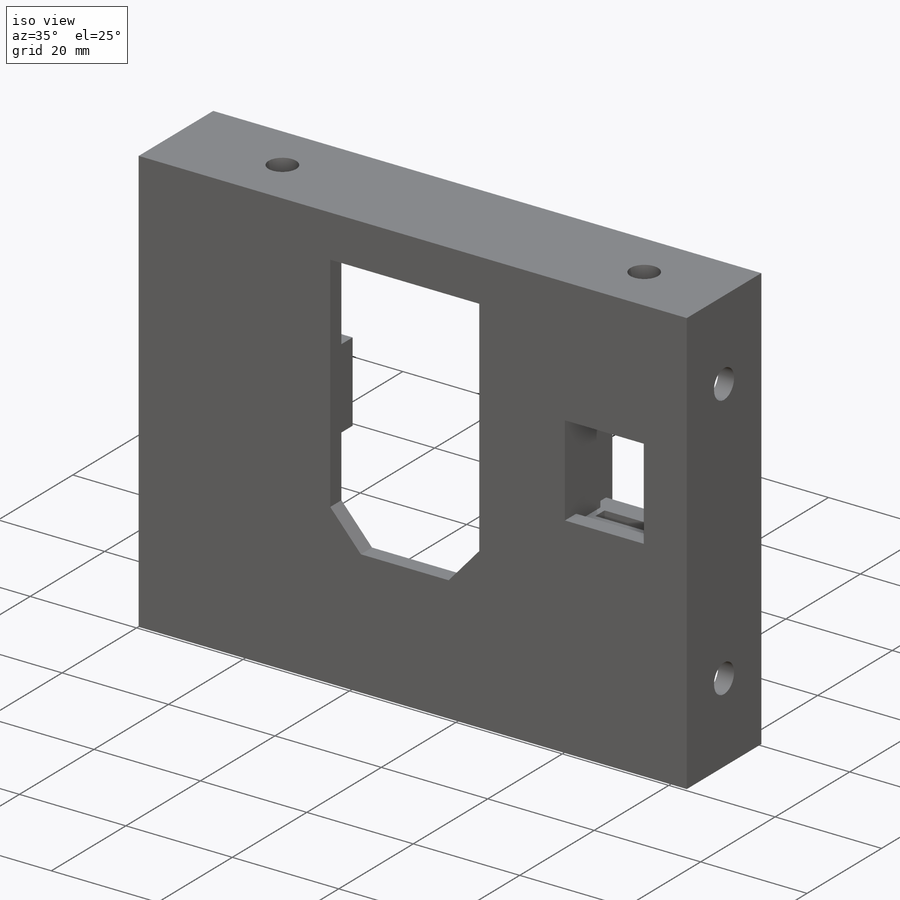
[diagram: iso view]
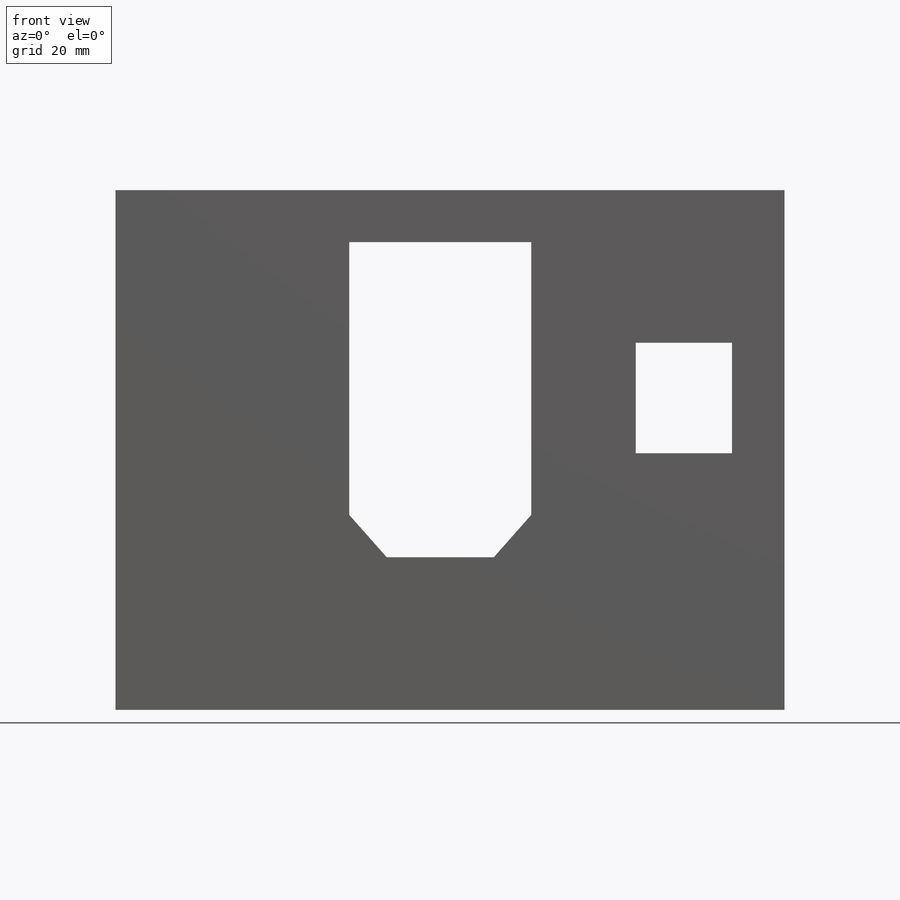
[diagram: front view]
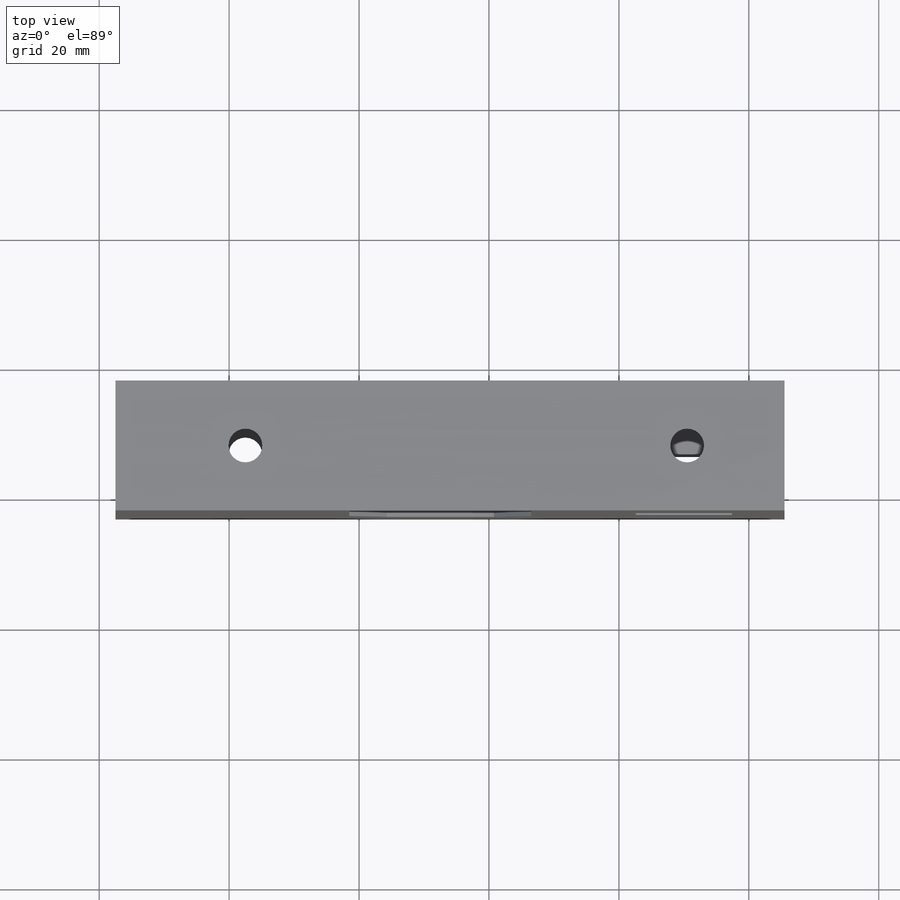
[diagram: top view]
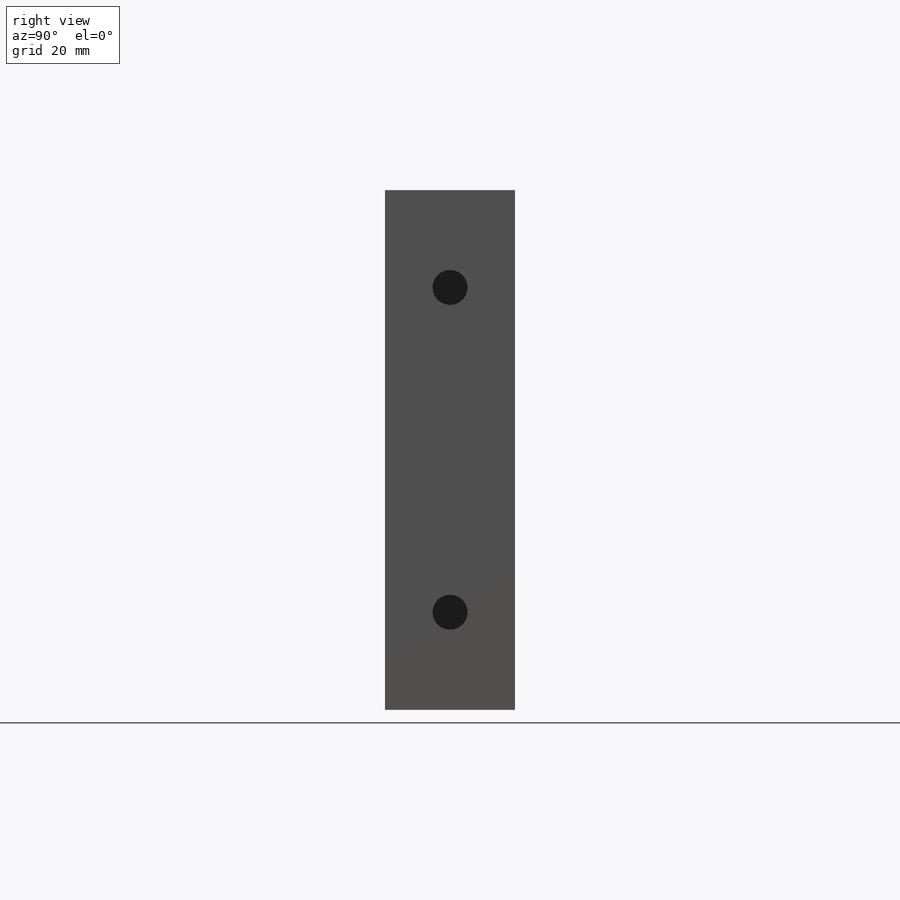
[diagram: right view]
SOLIDWORKS PART (.sldprt)
format: sldprt  version: not decoded by parser v0  size: 436,224 bytes
history: native  units: mm
features: sketch x10, extrude x8, mirror x2, cut_extrude x2, material x1, plane x1 (+13 scaffold rows collapsed)
feature tree (37):
  scaffold x13  (default folders/planes/origin — collapsed)
  material  "ABS"
  sketch  "Sketch1"  dims[c1.D7=2.7mm c1.D8=2.7mm c1.D9=2.7mm c1.D10=2.7mm c1.D11=2.7mm c1.D1=50.0mm c1.D2=80.0mm c1.D3=48.5mm c1.D4=16.5mm c1.D5=28.0mm c1.D6=6.5mm c2.D8=40.0mm c2.D9=20.0mm c2.D10=25.0mm c2.D11=8.0mm c3.D9=25.0mm c3.D12=20.0mm c3.D13=50.0mm]
  extrude  "Boss-Extrude1"  Depth=3mm
  sketch  "Sketch2"  dims[c1.D1=20.2mm c1.D2=4.0mm c1.D3=10.0mm c1.D4=14.0mm c2.D1=20.0mm c2.D2=3.0mm c3.D1=20.0mm]
  extrude  "Boss-Extrude2"  Depth=3mm
  mirror  "Mirror1"
  sketch  "Sketch7"  dims[D1=25.0mm D2=14.8mm D3=17.0mm D4=~31.998807mm D5=12.5mm]
  extrude  "Boss-Extrude6"  [1 undecoded]
  sketch  "Sketch8"  dims[D1=17.55mm D2=19.85mm D3=2.0mm D4=2.0mm]
  extrude  "Boss-Extrude7"  Depth=10mm
  sketch  "Sketch9"  dims[D1=2.5mm D2=12.5mm D3=9.0mm]
  cut_extrude  "Cut-Extrude3"  [1 undecoded]
  sketch  "Sketch10"
  extrude  "Boss-Extrude8"  Depth=6.5mm
  sketch  "Sketch11"  dims[c1.D3=~6.140986mm c1.D4=~5.557601mm c1.D5=5.4mm c1.D2=10.0mm c2.D3=15.0mm c2.D4=15.0mm c2.D1=0.0mm]
  extrude  "Boss-Extrude9"  Depth=3mm
  sketch  "Sketch3"  dims[c1.D1=8.0mm c1.D2=4.0mm c1.D3=4.0mm c2.D1=8.5mm c2.D3=4.0mm c2.D2=30.0mm c3.D3=2.0mm c3.D2=23.0mm c3.D1=15.0mm c4.D2=23.0mm]
  extrude  "Boss-Extrude3"  Depth=3mm
  sketch  "Sketch5"  dims[c1.D2=5.2mm c1.D3=5.2mm c1.D4=5.2mm c2.D3=5.2mm c2.D4=5.2mm c2.D1=10.0mm c3.D3=7.0mm c3.D4=7.0mm c4.D3=20.0mm c4.D4=15.0mm]
  extrude  "Boss-Extrude4"  Depth=3mm
  plane  "Plane1"
  mirror  "Mirror2"
  sketch  "Sketch21"
  cut_extrude  "Cut-Extrude5"  [1 undecoded]
decode coverage: 15 of 22 modeling features carry decoded parameters
note: ~ marks probable driven/reference dimensions
note: 3 parameter values undecoded
summary: no parameter record found for 3 features
note: suppression state not decoded; provenance and decode notes live in map.json
